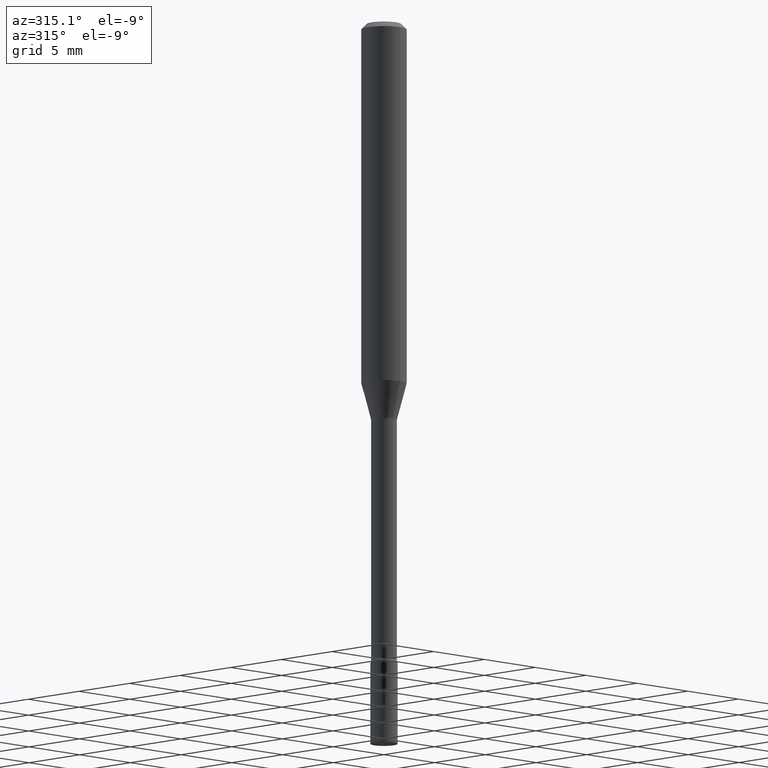
[diagram: clean part render]
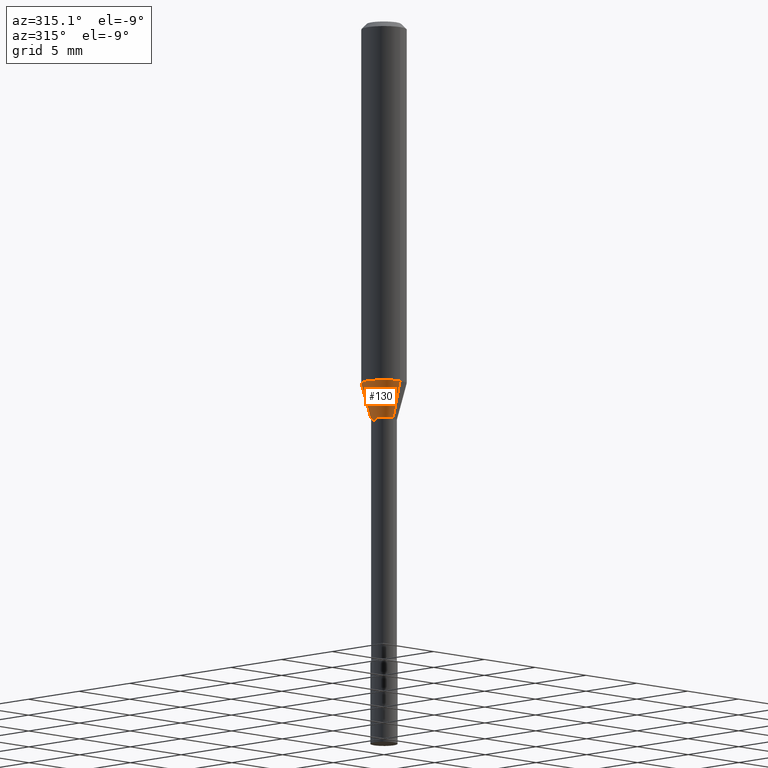
[diagram: same view with one face highlighted and labeled with its STEP entity id]
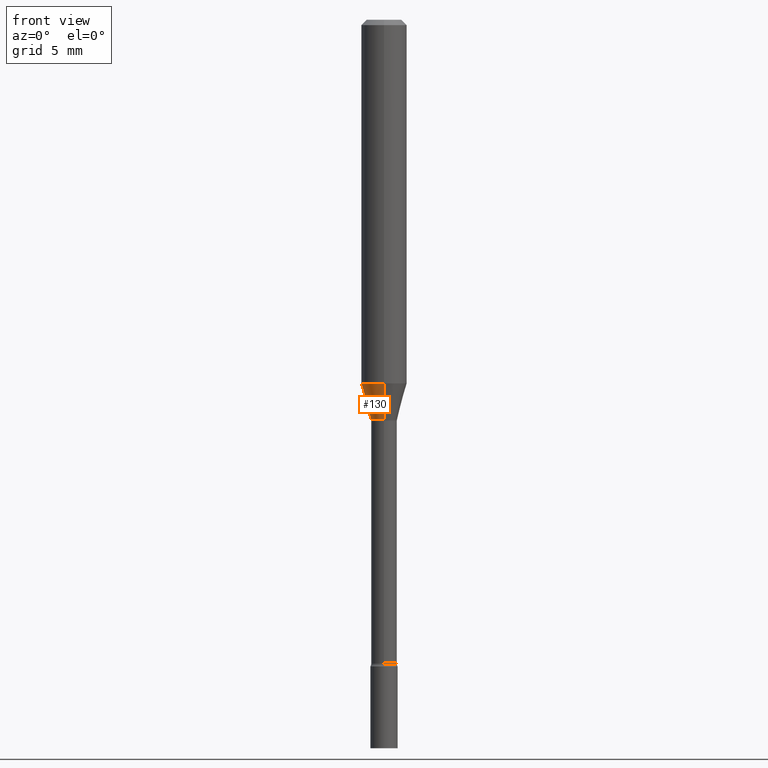
[diagram: same view with one face highlighted and labeled with its STEP entity id]
A machine part, auxiliary view. The second image highlights one B-rep face of the part: STEP entity #130.
A second angle (front view) of the same face is appended — the face is thin or edge-on in the first view.
In plain terms, the highlighted conical surface has half-angle 15 deg.
Its self-contained STEP definition (entity closure, byte-faithful):
#2 = CARTESIAN_POINT ( 'NONE',  ( 3.490935988483243741E-16, 0.03576111260566013778, -1.098092501787273356 ) ) ;
#21 = DIRECTION ( 'NONE',  ( -2.445546321764708525E-29, 3.491370332121285738E-15, 1.000000000000000000 ) ) ;
#32 = VERTEX_POINT ( 'NONE', #272 ) ;
#85 = DIRECTION ( 'NONE',  ( -2.445546321764708525E-29, 3.491370332121285738E-15, 1.000000000000000000 ) ) ;
#87 = VECTOR ( 'NONE', #506, 39.37007874015748143 ) ;
#98 = EDGE_CURVE ( 'NONE', #210, #32, #267, .T. ) ;
#106 = FACE_OUTER_BOUND ( 'NONE', #481, .T. ) ;
#121 = EDGE_CURVE ( 'NONE', #32, #170, #461, .T. ) ;
#130 = ADVANCED_FACE ( 'NONE', ( #106 ), #224, .T. ) ;
#146 = AXIS2_PLACEMENT_3D ( 'NONE', #446, #85, #249 ) ;
#154 = LINE ( 'NONE', #318, #349 ) ;
#170 = VERTEX_POINT ( 'NONE', #479 ) ;
#193 = ORIENTED_EDGE ( 'NONE', *, *, #98, .T. ) ;
#210 = VERTEX_POINT ( 'NONE', #2 ) ;
#224 = CONICAL_SURFACE ( 'NONE', #517, 0.03576111260566397498, 0.2617993877991499629 ) ;
#248 = ORIENTED_EDGE ( 'NONE', *, *, #295, .F. ) ;
#249 = DIRECTION ( 'NONE',  ( -6.982962677686265922E-15, -1.000000000000000000, 4.370956789862821150E-15 ) ) ;
#267 = CIRCLE ( 'NONE', #326, 0.03576111260566397498 ) ;
#272 = CARTESIAN_POINT ( 'NONE',  ( -2.497185146378605472E-16, -0.03576111260566780525, -1.098092501787272912 ) ) ;
#289 = CIRCLE ( 'NONE', #146, 0.06250000000000000000 ) ;
#295 = EDGE_CURVE ( 'NONE', #210, #333, #154, .T. ) ;
#302 = CARTESIAN_POINT ( 'NONE',  ( 2.685436078703272105E-29, -3.833847582664925383E-15, -1.098092501787273134 ) ) ;
#303 = ORIENTED_EDGE ( 'NONE', *, *, #121, .T. ) ;
#309 = DIRECTION ( 'NONE',  ( -6.982962677686265133E-15, -1.000000000000000000, 3.819579138641765120E-15 ) ) ;
#318 = CARTESIAN_POINT ( 'NONE',  ( 2.540979878465616281E-16, 0.03576111260566013778, -1.098092501787273356 ) ) ;
#326 = AXIS2_PLACEMENT_3D ( 'NONE', #302, #21, #309 ) ;
#333 = VERTEX_POINT ( 'NONE', #364 ) ;
#343 = CARTESIAN_POINT ( 'NONE',  ( 2.685436078703272105E-29, -3.833847582664925383E-15, -1.098092501787273134 ) ) ;
#349 = VECTOR ( 'NONE', #518, 39.37007874015748854 ) ;
#364 = CARTESIAN_POINT ( 'NONE',  ( 4.440892098500869722E-16, 0.06249999999999652361, -0.9983016154937485176 ) ) ;
#422 = DIRECTION ( 'NONE',  ( -2.445546321764708525E-29, 3.491370332121285738E-15, 1.000000000000000000 ) ) ;
#425 = CARTESIAN_POINT ( 'NONE',  ( -2.497185146378605472E-16, -0.03576111260566780525, -1.098092501787272912 ) ) ;
#446 = CARTESIAN_POINT ( 'NONE',  ( 2.441392843782502609E-29, -3.485440642843624235E-15, -0.9983016154937482955 ) ) ;
#461 = LINE ( 'NONE', #425, #87 ) ;
#479 = CARTESIAN_POINT ( 'NONE',  ( -4.364351673553671654E-16, -0.06250000000000346945, -0.9983016154937480735 ) ) ;
#481 = EDGE_LOOP ( 'NONE', ( #248, #193, #303, #494 ) ) ;
#484 = EDGE_CURVE ( 'NONE', #333, #170, #289, .T. ) ;
#494 = ORIENTED_EDGE ( 'NONE', *, *, #484, .F. ) ;
#506 = DIRECTION ( 'NONE',  ( -1.807323732225328167E-15, -0.2588190451025179084, 0.9659258262890690894 ) ) ;
#508 = DIRECTION ( 'NONE',  ( -6.982962677686265133E-15, -1.000000000000000000, 3.819579138641765120E-15 ) ) ;
#517 = AXIS2_PLACEMENT_3D ( 'NONE', #343, #422, #508 ) ;
#518 = DIRECTION ( 'NONE',  ( 1.839019923739597949E-15, 0.2588190451025246253, 0.9659258262890670910 ) ) ;